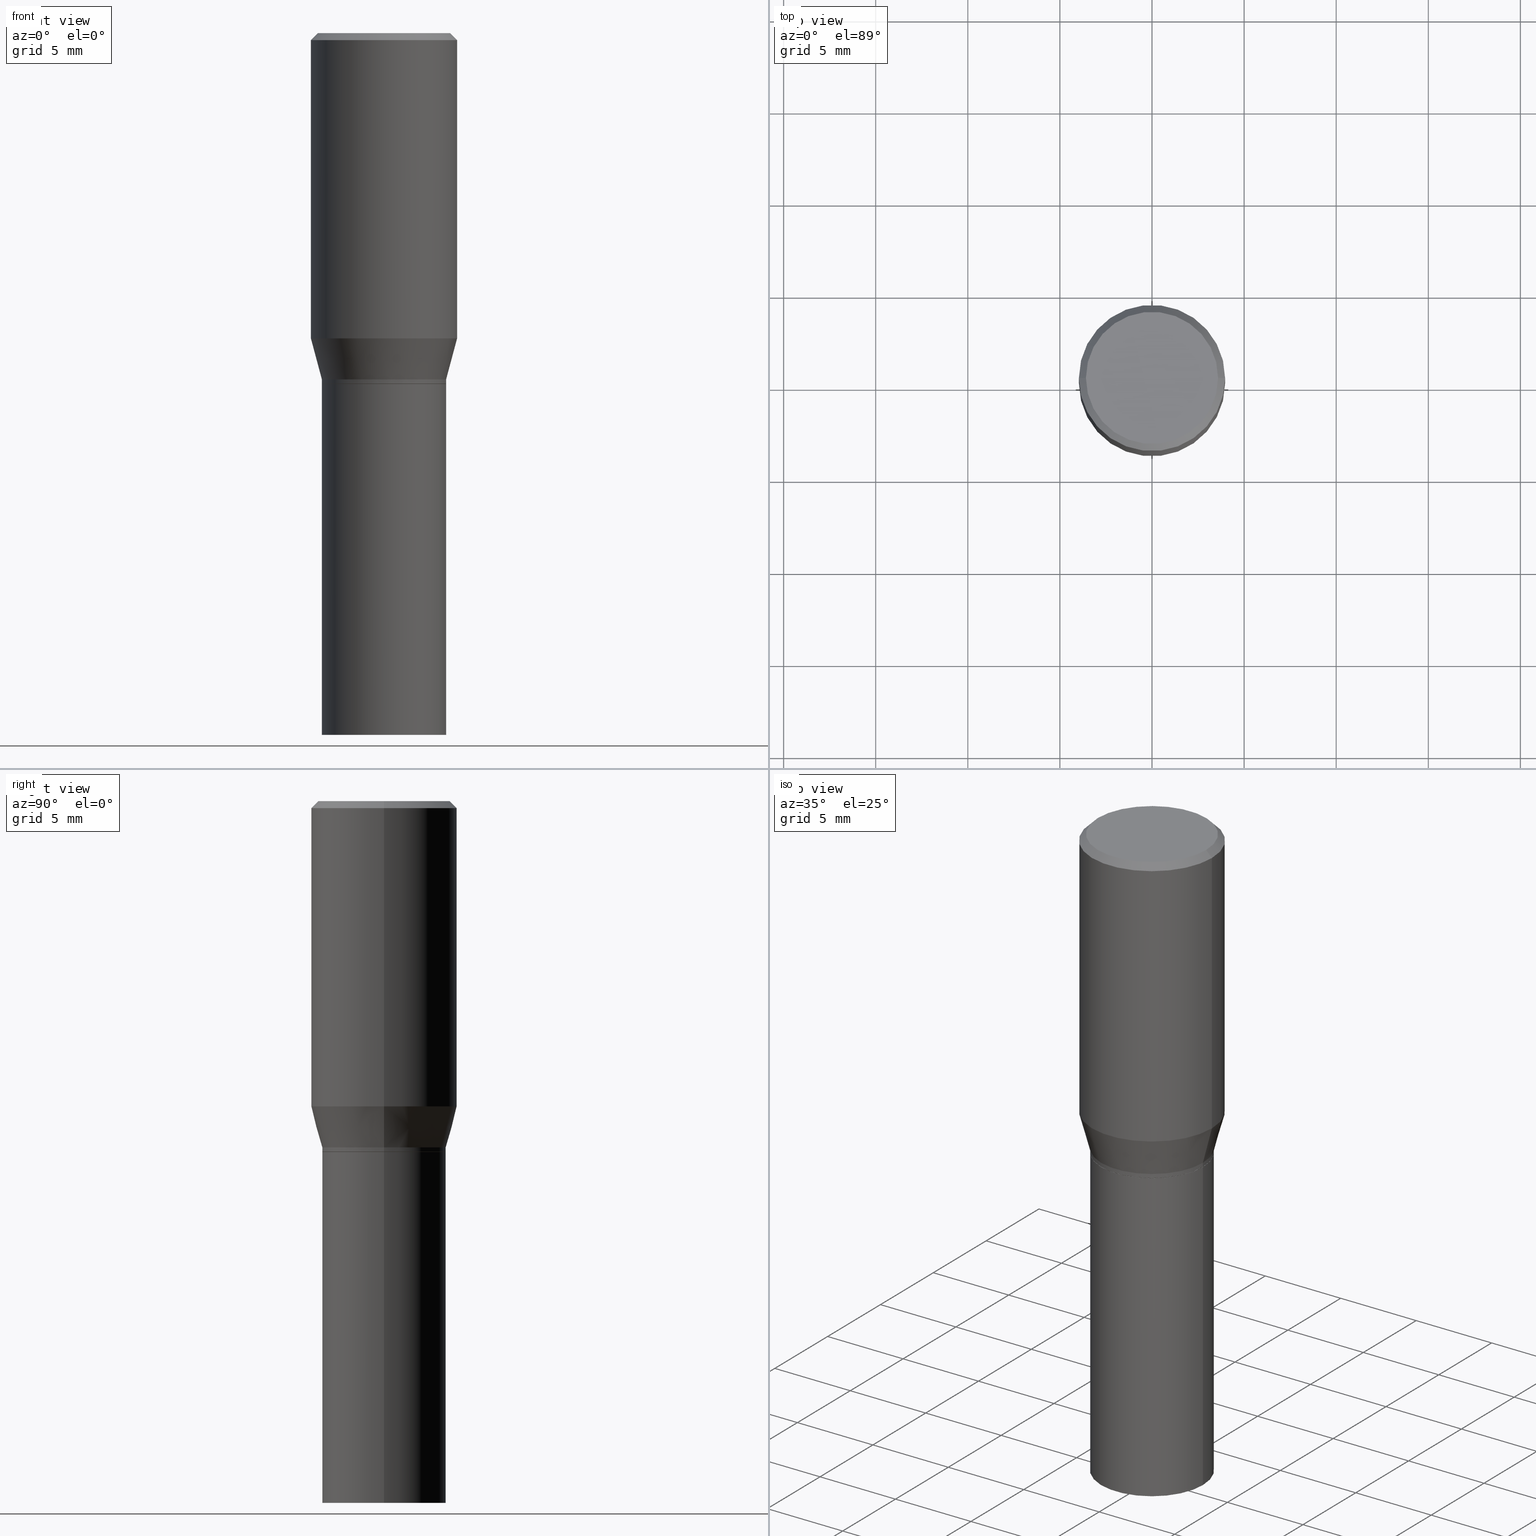
[diagram: canonical four-view strip — front | top / right | iso, engineering-drawing reading convention]
A machine part, canonical four-view strip (front | top / right | iso — engineering-drawing reading convention). The complete STEP part file that produces these views, byte-faithful:
ISO-10303-21;
HEADER;
FILE_DESCRIPTION (( 'STEP AP203' ),
    '1' );
FILE_NAME ('30333.STEP',
    '2024-03-13T16:07:54',
    ( '' ),
    ( '' ),
    'SwSTEP 2.0',
    'SolidWorks 2023',
    '' );
FILE_SCHEMA (( 'CONFIG_CONTROL_DESIGN' ));
ENDSEC;

DATA;
#1 = ORIENTED_EDGE ( 'NONE', *, *, #28, .T. ) ;
#2 = PERSON_AND_ORGANIZATION_ROLE ( 'design_owner' ) ;
#3 = FACE_OUTER_BOUND ( 'NONE', #280, .T. ) ;
#4 = UNCERTAINTY_MEASURE_WITH_UNIT (LENGTH_MEASURE( 1.000000000000000082E-05 ), #408, 'distance_accuracy_value', 'NONE');
#5 = COORDINATED_UNIVERSAL_TIME_OFFSET ( 5, 0, .BEHIND. ) ;
#6 = DIRECTION ( 'NONE',  ( 1.000000000000000000, -6.982962677686266711E-15, 4.876176775795935232E-29 ) ) ;
#7 = AXIS2_PLACEMENT_3D ( 'NONE', #216, #399, #40 ) ;
#8 = LINE ( 'NONE', #279, #63 ) ;
#9 = CIRCLE ( 'NONE', #271, 0.1562500000000000000 ) ;
#10 = CALENDAR_DATE ( 2024, 13, 3 ) ;
#11 = ORIENTED_EDGE ( 'NONE', *, *, #390, .T. ) ;
#12 = APPROVAL_DATE_TIME ( #174, #52 ) ;
#13 = DIRECTION ( 'NONE',  ( 0.7071067811865483499, -7.319954787623257623E-15, -0.7071067811865466846 ) ) ;
#14 = CARTESIAN_POINT ( 'NONE',  ( 3.668203209277705088E-31, -5.237222008264718399E-17, -0.01499999999999999944 ) ) ;
#15 = DATE_AND_TIME ( #38, #348 ) ;
#16 = CARTESIAN_POINT ( 'NONE',  ( 0.000000000000000000, 0.000000000000000000, 0.000000000000000000 ) ) ;
#17 = VERTEX_POINT ( 'NONE', #20 ) ;
#18 = EDGE_CURVE ( 'NONE', #17, #317, #76, .T. ) ;
#19 = CIRCLE ( 'NONE', #266, 0.1562500000000000000 ) ;
#20 = CARTESIAN_POINT ( 'NONE',  ( 0.1562500000000000000, -3.369221563289251454E-15, -0.6524834085625104141 ) ) ;
#21 = VECTOR ( 'NONE', #405, 39.37007874015748143 ) ;
#22 = MECHANICAL_CONTEXT ( 'NONE', #291, 'mechanical' ) ;
#23 = DIRECTION ( 'NONE',  ( -0.7071067811865483499, 2.468850131082265738E-15, -0.7071067811865466846 ) ) ;
#24 = ORIENTED_EDGE ( 'NONE', *, *, #388, .T. ) ;
#25 = CARTESIAN_POINT ( 'NONE',  ( 1.595627822192971094E-29, -2.278133644900773069E-15, -0.6524834085625104141 ) ) ;
#26 = CARTESIAN_POINT ( 'NONE',  ( 1.809646916577001463E-29, -2.583696190743928228E-15, -0.7400000000000002132 ) ) ;
#27 = DIRECTION ( 'NONE',  ( -2.445468806185136597E-29, 3.491481338843145583E-15, 1.000000000000000000 ) ) ;
#28 = EDGE_CURVE ( 'NONE', #194, #17, #376, .T. ) ;
#29 = VECTOR ( 'NONE', #133, 39.37007874015748143 ) ;
#30 = AXIS2_PLACEMENT_3D ( 'NONE', #358, #70, #422 ) ;
#31 = VERTEX_POINT ( 'NONE', #179 ) ;
#32 = EDGE_CURVE ( 'NONE', #194, #88, #153, .T. ) ;
#33 = VERTEX_POINT ( 'NONE', #246 ) ;
#34 = PRODUCT_RELATED_PRODUCT_CATEGORY ( 'detail', '', ( #218 ) ) ;
#35 = AXIS2_PLACEMENT_3D ( 'NONE', #299, #125, #404 ) ;
#36 = ORIENTED_EDGE ( 'NONE', *, *, #223, .F. ) ;
#37 = CARTESIAN_POINT ( 'NONE',  ( 1.834101604638852448E-29, -2.618611004132359088E-15, -0.7500000000000001110 ) ) ;
#38 = CALENDAR_DATE ( 2024, 13, 3 ) ;
#39 = AXIS2_PLACEMENT_3D ( 'NONE', #458, #305, #265 ) ;
#40 = DIRECTION ( 'NONE',  ( 1.000000000000000000, -6.982962677686265133E-15, 0.000000000000000000 ) ) ;
#41 = CC_DESIGN_APPROVAL ( #277, ( #304 ) ) ;
#42 = DIRECTION ( 'NONE',  ( -2.445468806185136597E-29, 3.491481338843145583E-15, 1.000000000000000000 ) ) ;
#43 = DIRECTION ( 'NONE',  ( 1.000000000000000000, -6.982962677686266711E-15, 4.876176775795936353E-29 ) ) ;
#44 = ADVANCED_FACE ( 'NONE', ( #221 ), #363, .T. ) ;
#45 = PRODUCT_DEFINITION_SHAPE ( 'NONE', 'NONE',  #137 ) ;
#46 = EDGE_CURVE ( 'NONE', #161, #322, #353, .T. ) ;
#47 = EDGE_LOOP ( 'NONE', ( #24, #383, #341, #395 ) ) ;
#48 = CARTESIAN_POINT ( 'NONE',  ( 9.273374435967543661E-16, 0.1327999999999973924, -0.7500000000000004441 ) ) ;
#49 = ORIENTED_EDGE ( 'NONE', *, *, #464, .T. ) ;
#50 = AXIS2_PLACEMENT_3D ( 'NONE', #238, #147, #449 ) ;
#51 = DIRECTION ( 'NONE',  ( -2.445468806185136597E-29, 3.491481338843145583E-15, 1.000000000000000000 ) ) ;
#52 = APPROVAL ( #103, 'UNSPECIFIED' ) ;
#53 = ORIENTED_EDGE ( 'NONE', *, *, #302, .F. ) ;
#54 = EDGE_LOOP ( 'NONE', ( #80, #435, #261, #365 ) ) ;
#55 = CARTESIAN_POINT ( 'NONE',  ( 3.668203209277705088E-31, -5.237222008264718399E-17, -0.01499999999999999944 ) ) ;
#56 = DIRECTION ( 'NONE',  ( 1.000000000000000000, -6.982962677686266711E-15, 4.876176775795935232E-29 ) ) ;
#57 = FACE_OUTER_BOUND ( 'NONE', #253, .T. ) ;
#58 = CARTESIAN_POINT ( 'NONE',  ( 0.000000000000000000, 0.000000000000000000, 0.000000000000000000 ) ) ;
#59 = CIRCLE ( 'NONE', #220, 0.1323000000000000009 ) ;
#60 = DIRECTION ( 'NONE',  ( -2.445468806185136877E-29, 3.491481338843145188E-15, 1.000000000000000000 ) ) ;
#61 = DIRECTION ( 'NONE',  ( 1.000000000000000000, -6.982962677686266711E-15, 0.000000000000000000 ) ) ;
#62 = EDGE_CURVE ( 'NONE', #317, #88, #19, .T. ) ;
#63 = VECTOR ( 'NONE', #434, 39.37007874015748143 ) ;
#64 = PLANE ( 'NONE',  #335 ) ;
#65 =( GEOMETRIC_REPRESENTATION_CONTEXT ( 3 ) GLOBAL_UNCERTAINTY_ASSIGNED_CONTEXT ( ( #4 ) ) GLOBAL_UNIT_ASSIGNED_CONTEXT ( ( #408, #300, #338 ) ) REPRESENTATION_CONTEXT ( 'NONE', 'WORKASPACE' ) );
#66 = EDGE_LOOP ( 'NONE', ( #11, #195, #309, #397 ) ) ;
#67 = DIRECTION ( 'NONE',  ( -2.445468806185136877E-29, 3.491481338843145188E-15, 1.000000000000000000 ) ) ;
#68 = CC_DESIGN_DATE_AND_TIME_ASSIGNMENT ( #15, #282, ( #393 ) ) ;
#69 = AXIS2_PLACEMENT_3D ( 'NONE', #432, #215, #441 ) ;
#70 = DIRECTION ( 'NONE',  ( 0.000000000000000000, 0.000000000000000000, 1.000000000000000000 ) ) ;
#71 = ORIENTED_EDGE ( 'NONE', *, *, #224, .F. ) ;
#72 = EDGE_CURVE ( 'NONE', #161, #194, #201, .T. ) ;
#73 = EDGE_CURVE ( 'NONE', #31, #109, #59, .T. ) ;
#74 = COORDINATED_UNIVERSAL_TIME_OFFSET ( 5, 0, .BEHIND. ) ;
#75 = LENGTH_MEASURE_WITH_UNIT ( LENGTH_MEASURE( 0.02539999999999999897 ), #262 );
#76 = LINE ( 'NONE', #160, #204 ) ;
#77 = DIRECTION ( 'NONE',  ( -2.445468806185136597E-29, 3.491481338843145583E-15, 1.000000000000000000 ) ) ;
#78 = CIRCLE ( 'NONE', #69, 0.1323000000000000009 ) ;
#79 = PERSON_AND_ORGANIZATION_ROLE ( 'creator' ) ;
#80 = ORIENTED_EDGE ( 'NONE', *, *, #289, .F. ) ;
#81 = FACE_OUTER_BOUND ( 'NONE', #149, .T. ) ;
#82 = ORIENTED_EDGE ( 'NONE', *, *, #388, .F. ) ;
#83 = EDGE_LOOP ( 'NONE', ( #371, #113, #298, #231 ) ) ;
#84 = DIRECTION ( 'NONE',  ( 2.445468806185136597E-29, -3.491481338843145583E-15, -1.000000000000000000 ) ) ;
#85 = CARTESIAN_POINT ( 'NONE',  ( 0.1328000000000000569, -3.511033634340664450E-15, -0.7400000000000002132 ) ) ;
#86 = ORIENTED_EDGE ( 'NONE', *, *, #32, .F. ) ;
#87 = VECTOR ( 'NONE', #377, 39.37007874015748143 ) ;
#88 = VERTEX_POINT ( 'NONE', #257 ) ;
#89 = VERTEX_POINT ( 'NONE', #423 ) ;
#90 = CARTESIAN_POINT ( 'NONE',  ( 0.1328000000000000569, -3.511033634340664450E-15, -0.7400000000000002132 ) ) ;
#91 = LINE ( 'NONE', #421, #260 ) ;
#92 = DIRECTION ( 'NONE',  ( -2.445468806185136597E-29, 3.491481338843145583E-15, 1.000000000000000000 ) ) ;
#93 = ADVANCED_FACE ( 'NONE', ( #428 ), #347, .T. ) ;
#94 = AXIS2_PLACEMENT_3D ( 'NONE', #48, #334, #297 ) ;
#95 = CC_DESIGN_APPROVAL ( #52, ( #137 ) ) ;
#96 = CARTESIAN_POINT ( 'NONE',  ( -0.1328000000000000569, -1.404003028965065357E-15, -0.7400000000000002132 ) ) ;
#97 = AXIS2_PLACEMENT_3D ( 'NONE', #287, #116, #187 ) ;
#98 = ORIENTED_EDGE ( 'NONE', *, *, #73, .F. ) ;
#99 = PERSON_AND_ORGANIZATION ( #461, #233 ) ;
#100 = EDGE_CURVE ( 'NONE', #189, #161, #328, .T. ) ;
#101 = COORDINATED_UNIVERSAL_TIME_OFFSET ( 5, 0, .BEHIND. ) ;
#102 = ORIENTED_EDGE ( 'NONE', *, *, #318, .F. ) ;
#103 = APPROVAL_STATUS ( 'not_yet_approved' ) ;
#104 = DIRECTION ( 'NONE',  ( 1.000000000000000000, -6.982962677686266711E-15, 4.876176775795935232E-29 ) ) ;
#105 = CIRCLE ( 'NONE', #447, 0.1412500000000000144 ) ;
#106 = LOCAL_TIME ( 12, 7, 54.00000000000000000, #430 ) ;
#107 = CARTESIAN_POINT ( 'NONE',  ( 0.1562500000000000000, -1.124325032234449083E-15, -0.01499999999999999944 ) ) ;
#108 = CARTESIAN_POINT ( 'NONE',  ( 0.1323000000000000009, -3.542456966390252304E-15, -0.7500000000000001110 ) ) ;
#109 = VERTEX_POINT ( 'NONE', #127 ) ;
#110 = DATE_AND_TIME ( #321, #106 ) ;
#111 = PLANE ( 'NONE',  #355 ) ;
#112 = EDGE_CURVE ( 'NONE', #342, #189, #276, .T. ) ;
#113 = ORIENTED_EDGE ( 'NONE', *, *, #289, .T. ) ;
#114 = DATE_AND_TIME ( #10, #416 ) ;
#115 = CLOSED_SHELL ( 'NONE', ( #131, #418, #370, #172, #164, #450, #44, #346, #213, #307, #93, #426 ) ) ;
#116 = DIRECTION ( 'NONE',  ( -2.445468806185136597E-29, 3.491481338843145583E-15, 1.000000000000000000 ) ) ;
#117 = ORIENTED_EDGE ( 'NONE', *, *, #320, .T. ) ;
#118 = CLOSED_SHELL ( 'NONE', ( #457, #344, #433, #208 ) ) ;
#119 = AXIS2_PLACEMENT_3D ( 'NONE', #37, #240, #278 ) ;
#120 = CIRCLE ( 'NONE', #296, 0.1328000000000000014 ) ;
#121 = PERSON_AND_ORGANIZATION ( #461, #233 ) ;
#122 = ADVANCED_BREP_SHAPE_REPRESENTATION ( '30333', ( #379, #373, #30 ), #65 ) ;
#123 = CARTESIAN_POINT ( 'NONE',  ( -0.1328000000000000569, -1.673264510373524331E-15, -0.7495000000000000551 ) ) ;
#124 = CARTESIAN_POINT ( 'NONE',  ( -0.1562500000000000000, -1.167910620275616332E-15, -0.6524834085625104141 ) ) ;
#125 = DIRECTION ( 'NONE',  ( -2.445468806185136597E-29, 3.491481338843145583E-15, 1.000000000000000000 ) ) ;
#126 = ORIENTED_EDGE ( 'NONE', *, *, #390, .F. ) ;
#127 = CARTESIAN_POINT ( 'NONE',  ( 0.1323000000000000009, -3.542456966390252304E-15, -0.7500000000000001110 ) ) ;
#128 = CARTESIAN_POINT ( 'NONE',  ( 1.834101604638852448E-29, -2.618611004132359088E-15, -0.7500000000000001110 ) ) ;
#129 = CARTESIAN_POINT ( 'NONE',  ( 0.000000000000000000, 0.000000000000000000, 0.000000000000000000 ) ) ;
#130 = EDGE_CURVE ( 'NONE', #188, #333, #258, .T. ) ;
#131 = ADVANCED_FACE ( 'NONE', ( #138 ), #311, .T. ) ;
#132 = DIRECTION ( 'NONE',  ( -2.445468806185136597E-29, 3.491481338843145583E-15, 1.000000000000000000 ) ) ;
#133 = DIRECTION ( 'NONE',  ( -0.7071067811865595631, 7.493145998870398336E-15, 0.7071067811865354713 ) ) ;
#134 = VECTOR ( 'NONE', #410, 39.37007874015748143 ) ;
#135 = AXIS2_PLACEMENT_3D ( 'NONE', #349, #170, #270 ) ;
#136 = APPROVAL_PERSON_ORGANIZATION ( #99, #52, #306 ) ;
#137 = PRODUCT_DEFINITION ( 'UNKNOWN', '', #304, #392 ) ;
#138 = FACE_OUTER_BOUND ( 'NONE', #465, .T. ) ;
#139 = CARTESIAN_POINT ( 'NONE',  ( 0.1328000000000000014, -3.545948447729095705E-15, -0.7500000000000001110 ) ) ;
#140 = CYLINDRICAL_SURFACE ( 'NONE', #378, 0.1328000000000000014 ) ;
#141 = CARTESIAN_POINT ( 'NONE',  ( 3.576687321579069994E-29, -5.368277968210015545E-15, -1.500000000000000222 ) ) ;
#142 = AXIS2_PLACEMENT_3D ( 'NONE', #25, #132, #412 ) ;
#143 = ORIENTED_EDGE ( 'NONE', *, *, #329, .T. ) ;
#144 = FACE_OUTER_BOUND ( 'NONE', #83, .T. ) ;
#145 = APPLICATION_PROTOCOL_DEFINITION ( 'international standard', 'config_control_design', 1994, #291 ) ;
#146 = EDGE_CURVE ( 'NONE', #31, #189, #200, .T. ) ;
#147 = DIRECTION ( 'NONE',  ( -2.438088387897960049E-29, 3.491481338843145188E-15, 1.000000000000000000 ) ) ;
#148 = PERSON_AND_ORGANIZATION ( #461, #233 ) ;
#149 = EDGE_LOOP ( 'NONE', ( #49, #151 ) ) ;
#150 = ORIENTED_EDGE ( 'NONE', *, *, #235, .F. ) ;
#151 = ORIENTED_EDGE ( 'NONE', *, *, #302, .T. ) ;
#152 = CARTESIAN_POINT ( 'NONE',  ( 1.066899386337773103E-45, -1.523249566054587316E-31, -4.362760153142606033E-17 ) ) ;
#153 = LINE ( 'NONE', #285, #443 ) ;
#154 = CALENDAR_DATE ( 2024, 13, 3 ) ;
#155 = DIRECTION ( 'NONE',  ( -2.445468806185136597E-29, 3.491481338843145583E-15, 1.000000000000000000 ) ) ;
#156 = ORIENTED_EDGE ( 'NONE', *, *, #162, .F. ) ;
#157 = AXIS2_PLACEMENT_3D ( 'NONE', #199, #226, #386 ) ;
#158 = AXIS2_PLACEMENT_3D ( 'NONE', #419, #374, #56 ) ;
#159 = APPROVAL_PERSON_ORGANIZATION ( #446, #277, #359 ) ;
#160 = CARTESIAN_POINT ( 'NONE',  ( 0.1562500000000000000, -1.091087918388479174E-15, 7.619026212181150377E-30 ) ) ;
#161 = VERTEX_POINT ( 'NONE', #96 ) ;
#162 = EDGE_CURVE ( 'NONE', #109, #31, #78, .T. ) ;
#163 = CARTESIAN_POINT ( 'NONE',  ( -0.1328000000000000569, -1.640095437654514777E-15, -0.7400000000000002132 ) ) ;
#164 = ADVANCED_FACE ( 'NONE', ( #288 ), #267, .T. ) ;
#165 = CARTESIAN_POINT ( 'NONE',  ( 1.066899386337773103E-45, -1.523249566054587316E-31, -4.362760153142606033E-17 ) ) ;
#166 = CARTESIAN_POINT ( 'NONE',  ( -0.1562500000000000000, 1.038715698305832094E-15, -0.01499999999999999944 ) ) ;
#167 = ORIENTED_EDGE ( 'NONE', *, *, #403, .T. ) ;
#168 = DIRECTION ( 'NONE',  ( -2.445468806185136597E-29, 3.491481338843145583E-15, 1.000000000000000000 ) ) ;
#169 = ORIENTED_EDGE ( 'NONE', *, *, #224, .T. ) ;
#170 = DIRECTION ( 'NONE',  ( 2.445468806185136597E-29, -3.491481338843145583E-15, -1.000000000000000000 ) ) ;
#171 = EDGE_LOOP ( 'NONE', ( #406, #444, #210, #427 ) ) ;
#172 = ADVANCED_FACE ( 'NONE', ( #251 ), #331, .T. ) ;
#173 = CARTESIAN_POINT ( 'NONE',  ( 1.834101604638852448E-29, -2.618611004132359088E-15, -0.7500000000000001110 ) ) ;
#174 = DATE_AND_TIME ( #396, #356 ) ;
#175 = EDGE_LOOP ( 'NONE', ( #150, #167, #337, #53 ) ) ;
#176 = PERSON_AND_ORGANIZATION ( #461, #233 ) ;
#177 = AXIS2_PLACEMENT_3D ( 'NONE', #413, #92, #230 ) ;
#178 = DIRECTION ( 'NONE',  ( 1.000000000000000000, -6.982962677686266711E-15, 0.000000000000000000 ) ) ;
#179 = CARTESIAN_POINT ( 'NONE',  ( -0.1323000000000000009, -1.675913737547635335E-15, -0.7500000000000001110 ) ) ;
#180 = PERSON_AND_ORGANIZATION ( #461, #233 ) ;
#181 = ORIENTED_EDGE ( 'NONE', *, *, #100, .T. ) ;
#182 = CC_DESIGN_PERSON_AND_ORGANIZATION_ASSIGNMENT ( #180, #184, ( #304 ) ) ;
#183 = ORIENTED_EDGE ( 'NONE', *, *, #162, .T. ) ;
#184 = PERSON_AND_ORGANIZATION_ROLE ( 'design_supplier' ) ;
#185 = ORIENTED_EDGE ( 'NONE', *, *, #403, .F. ) ;
#186 = CARTESIAN_POINT ( 'NONE',  ( 0.000000000000000000, 0.000000000000000000, 0.000000000000000000 ) ) ;
#187 = DIRECTION ( 'NONE',  ( 1.000000000000000000, -6.982962677686265133E-15, 0.000000000000000000 ) ) ;
#188 = VERTEX_POINT ( 'NONE', #293 ) ;
#189 = VERTEX_POINT ( 'NONE', #123 ) ;
#190 = AXIS2_PLACEMENT_3D ( 'NONE', #380, #27, #463 ) ;
#191 = CC_DESIGN_PERSON_AND_ORGANIZATION_ASSIGNMENT ( #121, #79, ( #137 ) ) ;
#192 = CC_DESIGN_APPROVAL ( #364, ( #393 ) ) ;
#193 = DIRECTION ( 'NONE',  ( 1.000000000000000000, -6.982962677686268288E-15, 0.000000000000000000 ) ) ;
#194 = VERTEX_POINT ( 'NONE', #124 ) ;
#195 = ORIENTED_EDGE ( 'NONE', *, *, #235, .T. ) ;
#196 = DIRECTION ( 'NONE',  ( -1.000000000000000000, 6.982962677686266711E-15, 0.000000000000000000 ) ) ;
#197 = LINE ( 'NONE', #90, #87 ) ;
#198 = AXIS2_PLACEMENT_3D ( 'NONE', #129, #263, #227 ) ;
#199 = CARTESIAN_POINT ( 'NONE',  ( 0.000000000000000000, 0.000000000000000000, 0.000000000000000000 ) ) ;
#200 = LINE ( 'NONE', #345, #29 ) ;
#201 = LINE ( 'NONE', #163, #134 ) ;
#202 = FACE_OUTER_BOUND ( 'NONE', #54, .T. ) ;
#203 = CC_DESIGN_PERSON_AND_ORGANIZATION_ASSIGNMENT ( #281, #2, ( #218 ) ) ;
#204 = VECTOR ( 'NONE', #451, 39.37007874015748143 ) ;
#205 = VECTOR ( 'NONE', #274, 39.37007874015748143 ) ;
#206 = CARTESIAN_POINT ( 'NONE',  ( 1.834101604638852448E-29, -2.618611004132359088E-15, -0.7500000000000001110 ) ) ;
#207 = DIRECTION ( 'NONE',  ( -2.438088387897960049E-29, 3.491481338843145188E-15, 1.000000000000000000 ) ) ;
#208 = ADVANCED_FACE ( 'NONE', ( #81 ), #366, .F. ) ;
#209 = AXIS2_PLACEMENT_3D ( 'NONE', #26, #168, #460 ) ;
#210 = ORIENTED_EDGE ( 'NONE', *, *, #357, .T. ) ;
#211 = AXIS2_PLACEMENT_3D ( 'NONE', #255, #225, #193 ) ;
#212 = ORIENTED_EDGE ( 'NONE', *, *, #424, .F. ) ;
#213 = ADVANCED_FACE ( 'NONE', ( #452 ), #111, .F. ) ;
#214 = APPROVAL_STATUS ( 'not_yet_approved' ) ;
#215 = DIRECTION ( 'NONE',  ( -2.445468806185136597E-29, 3.491481338843145583E-15, 1.000000000000000000 ) ) ;
#216 = CARTESIAN_POINT ( 'NONE',  ( 1.595627822192971094E-29, -2.278133644900773069E-15, -0.6524834085625104141 ) ) ;
#217 = APPROVAL_DATE_TIME ( #110, #277 ) ;
#218 = PRODUCT ( '30333', '30333', '', ( #22 ) ) ;
#219 = DIRECTION ( 'NONE',  ( 2.438088387897960049E-29, -3.491481338843145188E-15, -1.000000000000000000 ) ) ;
#220 = AXIS2_PLACEMENT_3D ( 'NONE', #128, #301, #453 ) ;
#221 = FACE_OUTER_BOUND ( 'NONE', #234, .T. ) ;
#222 = COORDINATED_UNIVERSAL_TIME_OFFSET ( 5, 0, .BEHIND. ) ;
#223 = EDGE_CURVE ( 'NONE', #88, #317, #9, .T. ) ;
#224 = EDGE_CURVE ( 'NONE', #342, #322, #91, .T. ) ;
#225 = DIRECTION ( 'NONE',  ( -2.445468806185136597E-29, 3.491481338843145583E-15, 1.000000000000000000 ) ) ;
#226 = DIRECTION ( 'NONE',  ( -2.445468806185136597E-29, 3.491481338843145583E-15, 1.000000000000000000 ) ) ;
#227 = DIRECTION ( 'NONE',  ( 1.000000000000000000, -6.982962677686266711E-15, 4.876176775795935232E-29 ) ) ;
#228 = CIRCLE ( 'NONE', #237, 0.1328000000000000014 ) ;
#229 = CONICAL_SURFACE ( 'NONE', #445, 0.1328000000000000569, 0.2617993877991501850 ) ;
#230 = DIRECTION ( 'NONE',  ( 1.000000000000000000, -6.982962677686263555E-15, 0.000000000000000000 ) ) ;
#231 = ORIENTED_EDGE ( 'NONE', *, *, #310, .F. ) ;
#232 = AXIS2_PLACEMENT_3D ( 'NONE', #448, #438, #398 ) ;
#233 = ORGANIZATION ( 'UNSPECIFIED', 'UNSPECIFIED', '' ) ;
#234 = EDGE_LOOP ( 'NONE', ( #86, #1, #239, #36 ) ) ;
#235 = EDGE_CURVE ( 'NONE', #89, #33, #8, .T. ) ;
#236 = FACE_OUTER_BOUND ( 'NONE', #367, .T. ) ;
#237 = AXIS2_PLACEMENT_3D ( 'NONE', #173, #425, #315 ) ;
#238 = CARTESIAN_POINT ( 'NONE',  ( 1.834101604638852448E-29, -2.618611004132359088E-15, -0.7500000000000001110 ) ) ;
#239 = ORIENTED_EDGE ( 'NONE', *, *, #18, .T. ) ;
#240 = DIRECTION ( 'NONE',  ( -2.445468806185136597E-29, 3.491481338843145583E-15, 1.000000000000000000 ) ) ;
#241 = ORIENTED_EDGE ( 'NONE', *, *, #357, .F. ) ;
#242 = APPLICATION_PROTOCOL_DEFINITION ( 'international standard', 'config_control_design', 1994, #314 ) ;
#243 = SHAPE_DEFINITION_REPRESENTATION ( #45, #122 ) ;
#244 = FACE_OUTER_BOUND ( 'NONE', #66, .T. ) ;
#245 = CARTESIAN_POINT ( 'NONE',  ( 9.863434782231852123E-16, 0.1412500000000000144, -5.149855398773074051E-16 ) ) ;
#246 = CARTESIAN_POINT ( 'NONE',  ( -0.1328000000000000014, -2.984315753109125576E-15, -0.7500000000000001110 ) ) ;
#247 = APPROVAL_DATE_TIME ( #114, #364 ) ;
#248 = CIRCLE ( 'NONE', #142, 0.1562500000000000000 ) ;
#249 = SECURITY_CLASSIFICATION_LEVEL ( 'unclassified' ) ;
#250 = DIRECTION ( 'NONE',  ( 1.000000000000000000, -6.982962677686265922E-15, 4.874209154772796007E-29 ) ) ;
#251 = FACE_OUTER_BOUND ( 'NONE', #47, .T. ) ;
#252 = ORIENTED_EDGE ( 'NONE', *, *, #318, .T. ) ;
#253 = EDGE_LOOP ( 'NONE', ( #183, #340, #455, #241 ) ) ;
#254 = DIRECTION ( 'NONE',  ( 1.000000000000000000, -6.982962677686268288E-15, 0.000000000000000000 ) ) ;
#255 = CARTESIAN_POINT ( 'NONE',  ( 1.832878870235759926E-29, -2.616865263462937979E-15, -0.7495000000000000551 ) ) ;
#256 = LINE ( 'NONE', #166, #361 ) ;
#257 = CARTESIAN_POINT ( 'NONE',  ( -0.1562500000000000000, -5.502990786655347834E-17, -0.01499999999999999944 ) ) ;
#258 = LINE ( 'NONE', #372, #294 ) ;
#259 = CC_DESIGN_DATE_AND_TIME_ASSIGNMENT ( #286, #325, ( #137 ) ) ;
#260 = VECTOR ( 'NONE', #67, 39.37007874015748143 ) ;
#261 = ORIENTED_EDGE ( 'NONE', *, *, #310, .T. ) ;
#262 =( LENGTH_UNIT ( ) NAMED_UNIT ( * ) SI_UNIT ( $, .METRE. ) );
#263 = DIRECTION ( 'NONE',  ( -2.445468806185136597E-29, 3.491481338843145583E-15, 1.000000000000000000 ) ) ;
#264 = CC_DESIGN_PERSON_AND_ORGANIZATION_ASSIGNMENT ( #275, #316, ( #304 ) ) ;
#265 = DIRECTION ( 'NONE',  ( 1.000000000000000000, -6.982962677686267499E-15, 0.000000000000000000 ) ) ;
#266 = AXIS2_PLACEMENT_3D ( 'NONE', #414, #381, #61 ) ;
#267 = CONICAL_SURFACE ( 'NONE', #232, 0.1328000000000000569, 0.2617993877991501850 ) ;
#268 = EDGE_CURVE ( 'NONE', #417, #409, #368, .T. ) ;
#269 = CARTESIAN_POINT ( 'NONE',  ( 0.1412500000000000144, -1.046685187209839144E-15, -4.362760153141894826E-17 ) ) ;
#270 = DIRECTION ( 'NONE',  ( -1.000000000000000000, 6.982962677686266711E-15, 0.000000000000000000 ) ) ;
#271 = AXIS2_PLACEMENT_3D ( 'NONE', #14, #324, #178 ) ;
#272 = APPROVAL_PERSON_ORGANIZATION ( #176, #364, #360 ) ;
#273 = ORIENTED_EDGE ( 'NONE', *, *, #268, .T. ) ;
#274 = DIRECTION ( 'NONE',  ( -2.445468806185136877E-29, 3.491481338843145188E-15, 1.000000000000000000 ) ) ;
#275 = PERSON_AND_ORGANIZATION ( #461, #233 ) ;
#276 = CIRCLE ( 'NONE', #35, 0.1328000000000000569 ) ;
#277 = APPROVAL ( #214, 'UNSPECIFIED' ) ;
#278 = DIRECTION ( 'NONE',  ( 1.000000000000000000, -6.982962677686267499E-15, 0.000000000000000000 ) ) ;
#279 = CARTESIAN_POINT ( 'NONE',  ( -0.1328000000000000014, 9.436007530894130566E-16, -6.532345799858513932E-30 ) ) ;
#280 = EDGE_LOOP ( 'NONE', ( #156, #98 ) ) ;
#281 = PERSON_AND_ORGANIZATION ( #461, #233 ) ;
#282 = DATE_TIME_ROLE ( 'classification_date' ) ;
#283 = DIRECTION ( 'NONE',  ( -2.445468806185136597E-29, 3.491481338843145583E-15, 1.000000000000000000 ) ) ;
#284 = DIRECTION ( 'NONE',  ( -2.445468806185136597E-29, 3.491481338843145583E-15, 1.000000000000000000 ) ) ;
#285 = CARTESIAN_POINT ( 'NONE',  ( -0.1562500000000000000, 1.110223024625156540E-15, -7.685836078523291160E-30 ) ) ;
#286 = DATE_AND_TIME ( #154, #336 ) ;
#287 = CARTESIAN_POINT ( 'NONE',  ( 1.809646916577001463E-29, -2.583696190743928228E-15, -0.7400000000000002132 ) ) ;
#288 = FACE_OUTER_BOUND ( 'NONE', #402, .T. ) ;
#289 = EDGE_CURVE ( 'NONE', #417, #317, #330, .T. ) ;
#290 = ORIENTED_EDGE ( 'NONE', *, *, #46, .T. ) ;
#291 = APPLICATION_CONTEXT ( 'configuration controlled 3d designs of mechanical parts and assemblies' ) ;
#292 = DIRECTION ( 'NONE',  ( -2.445468806185136597E-29, 3.491481338843145583E-15, 1.000000000000000000 ) ) ;
#293 = CARTESIAN_POINT ( 'NONE',  ( 0.1328000000000000014, -6.164559451861454793E-15, -1.500000000000000222 ) ) ;
#294 = VECTOR ( 'NONE', #60, 39.37007874015748143 ) ;
#295 = ORIENTED_EDGE ( 'NONE', *, *, #28, .F. ) ;
#296 = AXIS2_PLACEMENT_3D ( 'NONE', #206, #42, #254 ) ;
#297 = DIRECTION ( 'NONE',  ( -1.000000000000000000, 6.982962677686265922E-15, -4.876176775795935793E-29 ) ) ;
#298 = ORIENTED_EDGE ( 'NONE', *, *, #62, .T. ) ;
#299 = CARTESIAN_POINT ( 'NONE',  ( 1.832878870235759926E-29, -2.616865263462937979E-15, -0.7495000000000000551 ) ) ;
#300 =( NAMED_UNIT ( * ) PLANE_ANGLE_UNIT ( ) SI_UNIT ( $, .RADIAN. ) );
#301 = DIRECTION ( 'NONE',  ( -2.445468806185136597E-29, 3.491481338843145583E-15, 1.000000000000000000 ) ) ;
#302 = EDGE_CURVE ( 'NONE', #33, #333, #228, .T. ) ;
#303 = CYLINDRICAL_SURFACE ( 'NONE', #198, 0.1328000000000000569 ) ;
#304 = PRODUCT_DEFINITION_FORMATION_WITH_SPECIFIED_SOURCE ( 'ANY', '', #218, .NOT_KNOWN. ) ;
#305 = DIRECTION ( 'NONE',  ( -2.445468806185136597E-29, 3.491481338843145583E-15, 1.000000000000000000 ) ) ;
#306 = APPROVAL_ROLE ( '' ) ;
#307 = ADVANCED_FACE ( 'NONE', ( #3 ), #319, .F. ) ;
#308 = VECTOR ( 'NONE', #13, 39.37007874015748143 ) ;
#309 = ORIENTED_EDGE ( 'NONE', *, *, #464, .F. ) ;
#310 = EDGE_CURVE ( 'NONE', #409, #88, #256, .T. ) ;
#311 = CYLINDRICAL_SURFACE ( 'NONE', #158, 0.1328000000000000569 ) ;
#312 = LINE ( 'NONE', #108, #21 ) ;
#313 = CONICAL_SURFACE ( 'NONE', #135, 0.1562500000000000000, 0.7853981633974495002 ) ;
#314 = APPLICATION_CONTEXT ( 'configuration controlled 3d designs of mechanical parts and assemblies' ) ;
#315 = DIRECTION ( 'NONE',  ( 1.000000000000000000, -6.982962677686268288E-15, 0.000000000000000000 ) ) ;
#316 = PERSON_AND_ORGANIZATION_ROLE ( 'creator' ) ;
#317 = VERTEX_POINT ( 'NONE', #401 ) ;
#318 = EDGE_CURVE ( 'NONE', #322, #161, #343, .T. ) ;
#319 = PLANE ( 'NONE',  #50 ) ;
#320 = EDGE_CURVE ( 'NONE', #409, #417, #105, .T. ) ;
#321 = CALENDAR_DATE ( 2024, 13, 3 ) ;
#322 = VERTEX_POINT ( 'NONE', #85 ) ;
#323 = FACE_OUTER_BOUND ( 'NONE', #350, .T. ) ;
#324 = DIRECTION ( 'NONE',  ( -2.445468806185136597E-29, 3.491481338843145583E-15, 1.000000000000000000 ) ) ;
#325 = DATE_TIME_ROLE ( 'creation_date' ) ;
#326 = AXIS2_PLACEMENT_3D ( 'NONE', #152, #284, #354 ) ;
#327 = CC_DESIGN_SECURITY_CLASSIFICATION ( #393, ( #304 ) ) ;
#328 = LINE ( 'NONE', #387, #205 ) ;
#329 = EDGE_CURVE ( 'NONE', #189, #342, #415, .T. ) ;
#330 = LINE ( 'NONE', #107, #308 ) ;
#331 = CYLINDRICAL_SURFACE ( 'NONE', #462, 0.1562500000000000000 ) ;
#332 = ORIENTED_EDGE ( 'NONE', *, *, #72, .T. ) ;
#333 = VERTEX_POINT ( 'NONE', #139 ) ;
#334 = DIRECTION ( 'NONE',  ( 2.438088387897960049E-29, -3.491481338843145188E-15, -1.000000000000000000 ) ) ;
#335 = AXIS2_PLACEMENT_3D ( 'NONE', #141, #207, #382 ) ;
#336 = LOCAL_TIME ( 12, 7, 54.00000000000000000, #74 ) ;
#337 = ORIENTED_EDGE ( 'NONE', *, *, #130, .T. ) ;
#338 =( NAMED_UNIT ( * ) SI_UNIT ( $, .STERADIAN. ) SOLID_ANGLE_UNIT ( ) );
#339 = ORIENTED_EDGE ( 'NONE', *, *, #424, .T. ) ;
#340 = ORIENTED_EDGE ( 'NONE', *, *, #146, .T. ) ;
#341 = ORIENTED_EDGE ( 'NONE', *, *, #62, .F. ) ;
#342 = VERTEX_POINT ( 'NONE', #420 ) ;
#343 = CIRCLE ( 'NONE', #97, 0.1328000000000000569 ) ;
#344 = ADVANCED_FACE ( 'NONE', ( #236 ), #64, .F. ) ;
#345 = CARTESIAN_POINT ( 'NONE',  ( -0.1323000000000000009, -1.678562964721746930E-15, -0.7500000000000001110 ) ) ;
#346 = ADVANCED_FACE ( 'NONE', ( #202 ), #313, .T. ) ;
#347 = CONICAL_SURFACE ( 'NONE', #119, 0.1323000000000000009, 0.7853981633974653764 ) ;
#348 = LOCAL_TIME ( 12, 7, 54.00000000000000000, #101 ) ;
#349 = CARTESIAN_POINT ( 'NONE',  ( 3.668203209277705088E-31, -5.237222008264718399E-17, -0.01499999999999999944 ) ) ;
#350 = EDGE_LOOP ( 'NONE', ( #351, #290, #339, #295 ) ) ;
#351 = ORIENTED_EDGE ( 'NONE', *, *, #72, .F. ) ;
#352 = ORIENTED_EDGE ( 'NONE', *, *, #100, .F. ) ;
#353 = CIRCLE ( 'NONE', #209, 0.1328000000000000569 ) ;
#354 = DIRECTION ( 'NONE',  ( 1.000000000000000000, -6.982962677686265922E-15, 4.874209154772796007E-29 ) ) ;
#355 = AXIS2_PLACEMENT_3D ( 'NONE', #245, #219, #362 ) ;
#356 = LOCAL_TIME ( 12, 7, 54.00000000000000000, #222 ) ;
#357 = EDGE_CURVE ( 'NONE', #109, #342, #312, .T. ) ;
#358 = CARTESIAN_POINT ( 'NONE',  ( 0.000000000000000000, 0.000000000000000000, 0.000000000000000000 ) ) ;
#359 = APPROVAL_ROLE ( '' ) ;
#360 = APPROVAL_ROLE ( '' ) ;
#361 = VECTOR ( 'NONE', #23, 39.37007874015748143 ) ;
#362 = DIRECTION ( 'NONE',  ( -1.000000000000000000, 6.982962677686265922E-15, -4.876176775795935793E-29 ) ) ;
#363 = CYLINDRICAL_SURFACE ( 'NONE', #157, 0.1562500000000000000 ) ;
#364 = APPROVAL ( #436, 'UNSPECIFIED' ) ;
#365 = ORIENTED_EDGE ( 'NONE', *, *, #223, .T. ) ;
#366 = PLANE ( 'NONE',  #94 ) ;
#367 = EDGE_LOOP ( 'NONE', ( #126, #185 ) ) ;
#368 = CIRCLE ( 'NONE', #326, 0.1412500000000000144 ) ;
#369 = AXIS2_PLACEMENT_3D ( 'NONE', #58, #292, #6 ) ;
#370 = ADVANCED_FACE ( 'NONE', ( #144 ), #391, .T. ) ;
#371 = ORIENTED_EDGE ( 'NONE', *, *, #268, .F. ) ;
#372 = CARTESIAN_POINT ( 'NONE',  ( 0.1328000000000000014, -9.273374435967362223E-16, 6.475562758257002307E-30 ) ) ;
#373 = MANIFOLD_SOLID_BREP ( 'Body-Move/Copy2[2]', #115 ) ;
#374 = DIRECTION ( 'NONE',  ( -2.445468806185136597E-29, 3.491481338843145583E-15, 1.000000000000000000 ) ) ;
#375 = FACE_OUTER_BOUND ( 'NONE', #175, .T. ) ;
#376 = CIRCLE ( 'NONE', #7, 0.1562500000000000000 ) ;
#377 = DIRECTION ( 'NONE',  ( 0.2588190451025214611, 1.565188264969620982E-15, 0.9659258262890679791 ) ) ;
#378 = AXIS2_PLACEMENT_3D ( 'NONE', #186, #155, #104 ) ;
#379 = MANIFOLD_SOLID_BREP ( 'Body-Move/Copy2[1]', #118 ) ;
#380 = CARTESIAN_POINT ( 'NONE',  ( 3.668203209277704895E-29, -5.237222008264718177E-15, -1.500000000000000222 ) ) ;
#381 = DIRECTION ( 'NONE',  ( -2.445468806185136597E-29, 3.491481338843145583E-15, 1.000000000000000000 ) ) ;
#382 = DIRECTION ( 'NONE',  ( 1.000000000000000000, -6.982962677686265922E-15, 4.876176775795935793E-29 ) ) ;
#383 = ORIENTED_EDGE ( 'NONE', *, *, #32, .T. ) ;
#384 = CIRCLE ( 'NONE', #177, 0.1328000000000000014 ) ;
#385 = ORIENTED_EDGE ( 'NONE', *, *, #112, .T. ) ;
#386 = DIRECTION ( 'NONE',  ( 1.000000000000000000, -6.982962677686266711E-15, 4.876176775795936353E-29 ) ) ;
#387 = CARTESIAN_POINT ( 'NONE',  ( -0.1328000000000000569, 9.436007530894134510E-16, -6.532345799858516735E-30 ) ) ;
#388 = EDGE_CURVE ( 'NONE', #17, #194, #248, .T. ) ;
#389 = EDGE_LOOP ( 'NONE', ( #352, #143, #169, #407 ) ) ;
#390 = EDGE_CURVE ( 'NONE', #188, #89, #384, .T. ) ;
#391 = CONICAL_SURFACE ( 'NONE', #429, 0.1562500000000000000, 0.7853981633974495002 ) ;
#392 = DESIGN_CONTEXT ( 'detailed design', #314, 'design' ) ;
#393 = SECURITY_CLASSIFICATION ( '', '', #249 ) ;
#394 = DIMENSIONAL_EXPONENTS ( 1.000000000000000000, 0.000000000000000000, 0.000000000000000000, 0.000000000000000000, 0.000000000000000000, 0.000000000000000000, 0.000000000000000000 ) ;
#395 = ORIENTED_EDGE ( 'NONE', *, *, #18, .F. ) ;
#396 = CALENDAR_DATE ( 2024, 13, 3 ) ;
#397 = ORIENTED_EDGE ( 'NONE', *, *, #130, .F. ) ;
#398 = DIRECTION ( 'NONE',  ( 1.000000000000000000, -6.982962677686265133E-15, 0.000000000000000000 ) ) ;
#399 = DIRECTION ( 'NONE',  ( -2.445468806185136597E-29, 3.491481338843145583E-15, 1.000000000000000000 ) ) ;
#400 = CIRCLE ( 'NONE', #190, 0.1328000000000000014 ) ;
#401 = CARTESIAN_POINT ( 'NONE',  ( 0.1562500000000000000, -1.143460138471126253E-15, -0.01499999999999999944 ) ) ;
#402 = EDGE_LOOP ( 'NONE', ( #252, #332, #82, #212 ) ) ;
#403 = EDGE_CURVE ( 'NONE', #89, #188, #400, .T. ) ;
#404 = DIRECTION ( 'NONE',  ( 1.000000000000000000, -6.982962677686268288E-15, 0.000000000000000000 ) ) ;
#405 = DIRECTION ( 'NONE',  ( 0.7071067811865595631, -2.468850131082382884E-15, 0.7071067811865354713 ) ) ;
#406 = ORIENTED_EDGE ( 'NONE', *, *, #146, .F. ) ;
#407 = ORIENTED_EDGE ( 'NONE', *, *, #46, .F. ) ;
#408 =( CONVERSION_BASED_UNIT ( 'INCH', #75 ) LENGTH_UNIT ( ) NAMED_UNIT ( #394 ) );
#409 = VERTEX_POINT ( 'NONE', #466 ) ;
#410 = DIRECTION ( 'NONE',  ( -0.2588190451025214611, 5.211531920934550253E-15, 0.9659258262890679791 ) ) ;
#411 = FACE_OUTER_BOUND ( 'NONE', #389, .T. ) ;
#412 = DIRECTION ( 'NONE',  ( 1.000000000000000000, -6.982962677686265133E-15, 0.000000000000000000 ) ) ;
#413 = CARTESIAN_POINT ( 'NONE',  ( 3.668203209277704895E-29, -5.237222008264718177E-15, -1.500000000000000222 ) ) ;
#414 = CARTESIAN_POINT ( 'NONE',  ( 3.668203209277705088E-31, -5.237222008264718399E-17, -0.01499999999999999944 ) ) ;
#415 = CIRCLE ( 'NONE', #211, 0.1328000000000000569 ) ;
#416 = LOCAL_TIME ( 12, 7, 54.00000000000000000, #5 ) ;
#417 = VERTEX_POINT ( 'NONE', #269 ) ;
#418 = ADVANCED_FACE ( 'NONE', ( #57 ), #456, .T. ) ;
#419 = CARTESIAN_POINT ( 'NONE',  ( 0.000000000000000000, 0.000000000000000000, 0.000000000000000000 ) ) ;
#420 = CARTESIAN_POINT ( 'NONE',  ( 0.1328000000000000569, -3.544202707059674202E-15, -0.7495000000000000551 ) ) ;
#421 = CARTESIAN_POINT ( 'NONE',  ( 0.1328000000000000569, -9.273374435967366167E-16, 6.475562758257005110E-30 ) ) ;
#422 = DIRECTION ( 'NONE',  ( 1.000000000000000000, 0.000000000000000000, 0.000000000000000000 ) ) ;
#423 = CARTESIAN_POINT ( 'NONE',  ( -0.1328000000000000014, -2.984315753109125576E-15, -1.500000000000000222 ) ) ;
#424 = EDGE_CURVE ( 'NONE', #322, #17, #197, .T. ) ;
#425 = DIRECTION ( 'NONE',  ( -2.445468806185136597E-29, 3.491481338843145583E-15, 1.000000000000000000 ) ) ;
#426 = ADVANCED_FACE ( 'NONE', ( #411 ), #303, .T. ) ;
#427 = ORIENTED_EDGE ( 'NONE', *, *, #329, .F. ) ;
#428 = FACE_OUTER_BOUND ( 'NONE', #171, .T. ) ;
#429 = AXIS2_PLACEMENT_3D ( 'NONE', #55, #84, #196 ) ;
#430 = COORDINATED_UNIVERSAL_TIME_OFFSET ( 5, 0, .BEHIND. ) ;
#431 = CARTESIAN_POINT ( 'NONE',  ( 1.809646916577001463E-29, -2.583696190743928228E-15, -0.7400000000000002132 ) ) ;
#432 = CARTESIAN_POINT ( 'NONE',  ( 1.834101604638852448E-29, -2.618611004132359088E-15, -0.7500000000000001110 ) ) ;
#433 = ADVANCED_FACE ( 'NONE', ( #375 ), #140, .T. ) ;
#434 = DIRECTION ( 'NONE',  ( -2.445468806185136877E-29, 3.491481338843145188E-15, 1.000000000000000000 ) ) ;
#435 = ORIENTED_EDGE ( 'NONE', *, *, #320, .F. ) ;
#436 = APPROVAL_STATUS ( 'not_yet_approved' ) ;
#437 = DIRECTION ( 'NONE',  ( 1.000000000000000000, -6.982962677686265133E-15, 0.000000000000000000 ) ) ;
#438 = DIRECTION ( 'NONE',  ( -2.445468806185136597E-29, 3.491481338843145583E-15, 1.000000000000000000 ) ) ;
#439 = DIRECTION ( 'NONE',  ( -2.445468806185136877E-29, 3.491481338843145188E-15, 1.000000000000000000 ) ) ;
#440 = PERSON_AND_ORGANIZATION_ROLE ( 'classification_officer' ) ;
#441 = DIRECTION ( 'NONE',  ( 1.000000000000000000, -6.982962677686267499E-15, 0.000000000000000000 ) ) ;
#442 = EDGE_LOOP ( 'NONE', ( #117, #273 ) ) ;
#443 = VECTOR ( 'NONE', #439, 39.37007874015748143 ) ;
#444 = ORIENTED_EDGE ( 'NONE', *, *, #73, .T. ) ;
#445 = AXIS2_PLACEMENT_3D ( 'NONE', #431, #283, #437 ) ;
#446 = PERSON_AND_ORGANIZATION ( #461, #233 ) ;
#447 = AXIS2_PLACEMENT_3D ( 'NONE', #165, #51, #250 ) ;
#448 = CARTESIAN_POINT ( 'NONE',  ( 1.809646916577001463E-29, -2.583696190743928228E-15, -0.7400000000000002132 ) ) ;
#449 = DIRECTION ( 'NONE',  ( 1.000000000000000000, -6.982962677686265922E-15, 4.876176775795935793E-29 ) ) ;
#450 = ADVANCED_FACE ( 'NONE', ( #323 ), #229, .T. ) ;
#451 = DIRECTION ( 'NONE',  ( -2.445468806185136877E-29, 3.491481338843145188E-15, 1.000000000000000000 ) ) ;
#452 = FACE_OUTER_BOUND ( 'NONE', #442, .T. ) ;
#453 = DIRECTION ( 'NONE',  ( 1.000000000000000000, -6.982962677686267499E-15, 0.000000000000000000 ) ) ;
#454 = CYLINDRICAL_SURFACE ( 'NONE', #369, 0.1328000000000000014 ) ;
#455 = ORIENTED_EDGE ( 'NONE', *, *, #112, .F. ) ;
#456 = CONICAL_SURFACE ( 'NONE', #39, 0.1323000000000000009, 0.7853981633974653764 ) ;
#457 = ADVANCED_FACE ( 'NONE', ( #244 ), #454, .T. ) ;
#458 = CARTESIAN_POINT ( 'NONE',  ( 1.834101604638852448E-29, -2.618611004132359088E-15, -0.7500000000000001110 ) ) ;
#459 = CC_DESIGN_PERSON_AND_ORGANIZATION_ASSIGNMENT ( #148, #440, ( #393 ) ) ;
#460 = DIRECTION ( 'NONE',  ( 1.000000000000000000, -6.982962677686265133E-15, 0.000000000000000000 ) ) ;
#461 = PERSON ( 'UNSPECIFIED', 'UNSPECIFIED', 'UNSPECIFIED', ('UNSPECIFIED'), ('UNSPECIFIED'), ('UNSPECIFIED') ) ;
#462 = AXIS2_PLACEMENT_3D ( 'NONE', #16, #77, #43 ) ;
#463 = DIRECTION ( 'NONE',  ( 1.000000000000000000, -6.982962677686263555E-15, 0.000000000000000000 ) ) ;
#464 = EDGE_CURVE ( 'NONE', #333, #33, #120, .T. ) ;
#465 = EDGE_LOOP ( 'NONE', ( #385, #181, #102, #71 ) ) ;
#466 = CARTESIAN_POINT ( 'NONE',  ( -0.1412500000000000144, 1.012529588264508555E-15, -4.362760153143304915E-17 ) ) ;
ENDSEC;
END-ISO-10303-21;
